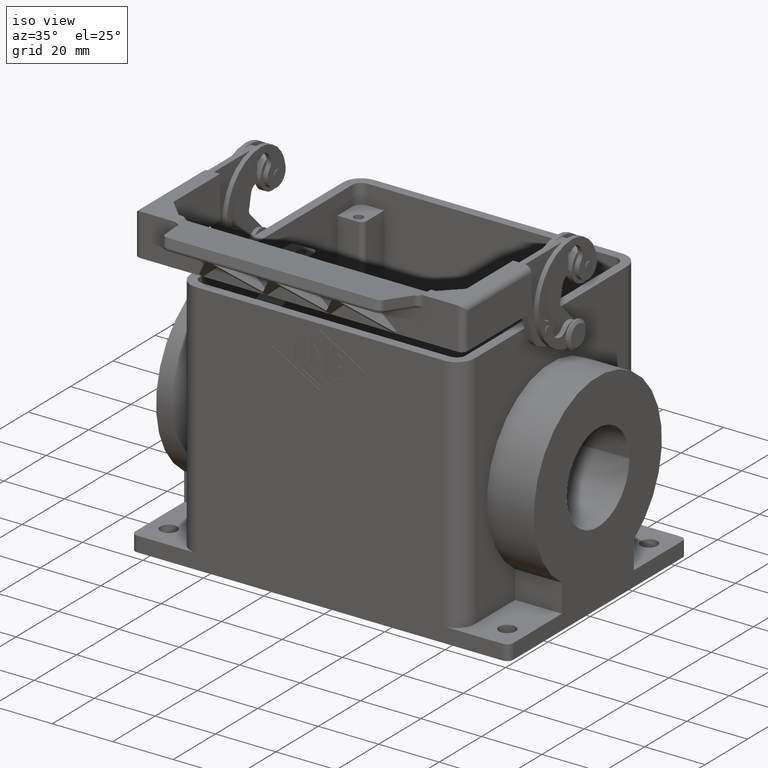
[diagram: clean part render]
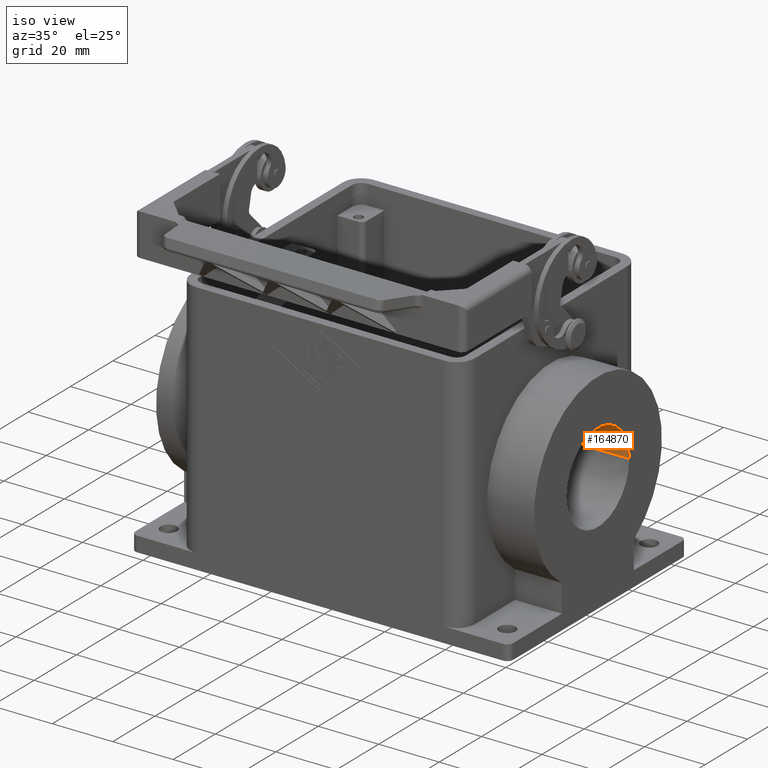
[diagram: same view with one face highlighted and labeled with its STEP entity id]
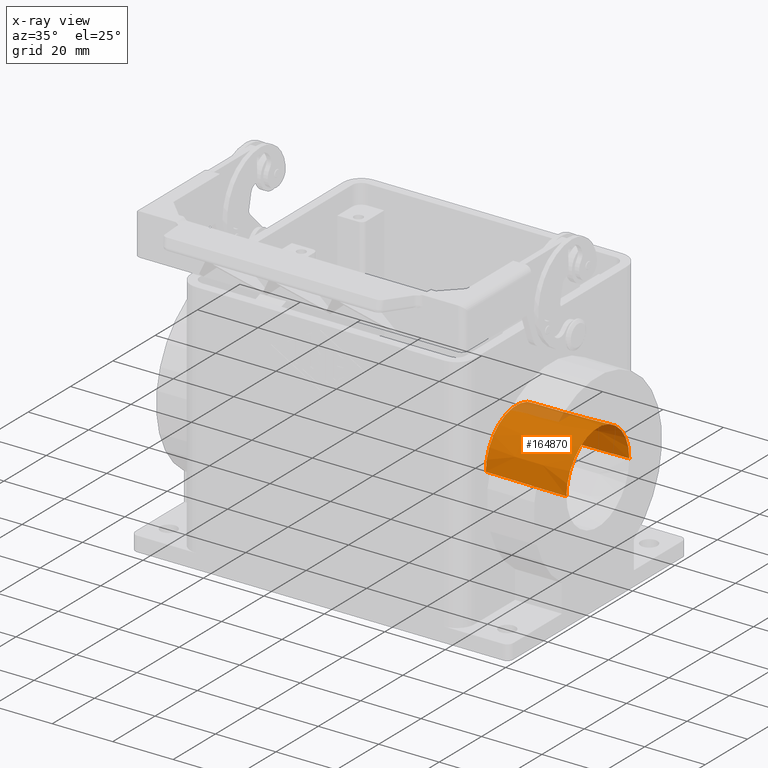
[diagram: x-ray of the same camera — body ghosted, the highlighted face saturated]
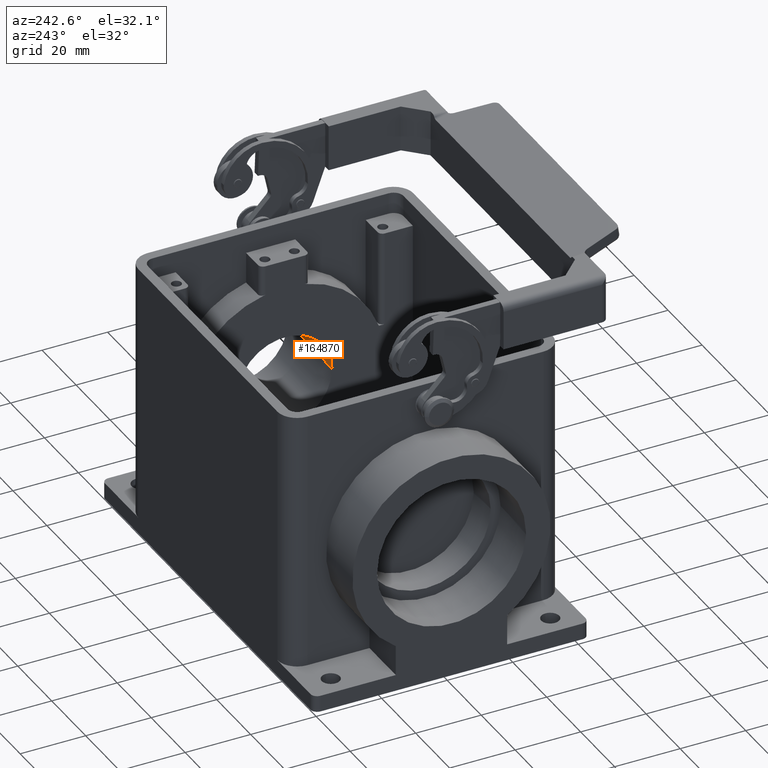
[diagram: same view with one face highlighted and labeled with its STEP entity id]
A machine part, iso view. The second image highlights one B-rep face of the part: STEP entity #164870.
The next image is the same camera in x-ray: the body ghosted, the highlighted face saturated — about 8% of this face is hidden behind the body in this view.
A second angle (auxiliary view) of the same face is appended — the face is thin or edge-on in the first view.
In plain terms, the highlighted conical surface has half-angle 1 deg.
Its self-contained STEP definition (entity closure, byte-faithful):
#133620=CARTESIAN_POINT('',(35.5,0.,-15.76));
#133630=DIRECTION('',(1.,0.,0.));
#133640=DIRECTION('',(0.,1.,0.));
#133650=AXIS2_PLACEMENT_3D('',#133620,#133630,#133640);
#133660=CIRCLE('',#133650,14.3787132469381);
#133670=CARTESIAN_POINT('',(35.5,14.3787132469381,-15.76));
#133680=VERTEX_POINT('',#133670);
#133690=CARTESIAN_POINT('',(35.5,-14.3787132469381,-15.76));
#133700=VERTEX_POINT('',#133690);
#133710=EDGE_CURVE('',#133680,#133700,#133660,.T.);
#143130=CARTESIAN_POINT('',(62.5,0.,-15.76));
#143140=DIRECTION('',(1.,0.,0.));
#143150=DIRECTION('',(0.,1.,0.));
#143160=AXIS2_PLACEMENT_3D('',#143130,#143140,#143150);
#143170=CIRCLE('',#143160,14.85);
#143180=CARTESIAN_POINT('',(62.5,14.85,-15.76));
#143190=VERTEX_POINT('',#143180);
#143200=CARTESIAN_POINT('',(62.5,-14.85,-15.76));
#143210=VERTEX_POINT('',#143200);
#143220=EDGE_CURVE('',#143190,#143210,#143170,.T.);
#158450=CARTESIAN_POINT('',(62.5,-14.85,-15.76));
#158460=DIRECTION('',(0.999847695156391,-0.0174524064372835,
2.0876566692836E-18));
#158470=VECTOR('',#158460,850.88552420347);
#158480=LINE('',#158450,#158470);
#158490=EDGE_CURVE('',#133700,#143210,#158480,.T.);
#158520=CARTESIAN_POINT('',(62.5,14.85,-15.76));
#158530=DIRECTION('',(0.999847695156391,0.0174524064372835,0.));
#158540=VECTOR('',#158530,850.88552420347);
#158550=LINE('',#158520,#158540);
#158560=EDGE_CURVE('',#133680,#143190,#158550,.T.);
#164760=CARTESIAN_POINT('',(62.5,0.,-15.76));
#164770=DIRECTION('',(1.,0.,0.));
#164780=DIRECTION('',(0.,1.,0.));
#164790=AXIS2_PLACEMENT_3D('',#164760,#164770,#164780);
#164800=CONICAL_SURFACE('',#164790,14.85,0.0174532925199433);
#164810=ORIENTED_EDGE('',*,*,#133710,.F.);
#164820=ORIENTED_EDGE('',*,*,#158490,.F.);
#164830=ORIENTED_EDGE('',*,*,#143220,.T.);
#164840=ORIENTED_EDGE('',*,*,#158560,.T.);
#164850=EDGE_LOOP('',(#164840,#164830,#164820,#164810));
#164860=FACE_OUTER_BOUND('',#164850,.T.);
#164870=ADVANCED_FACE('',(#164860),#164800,.F.);